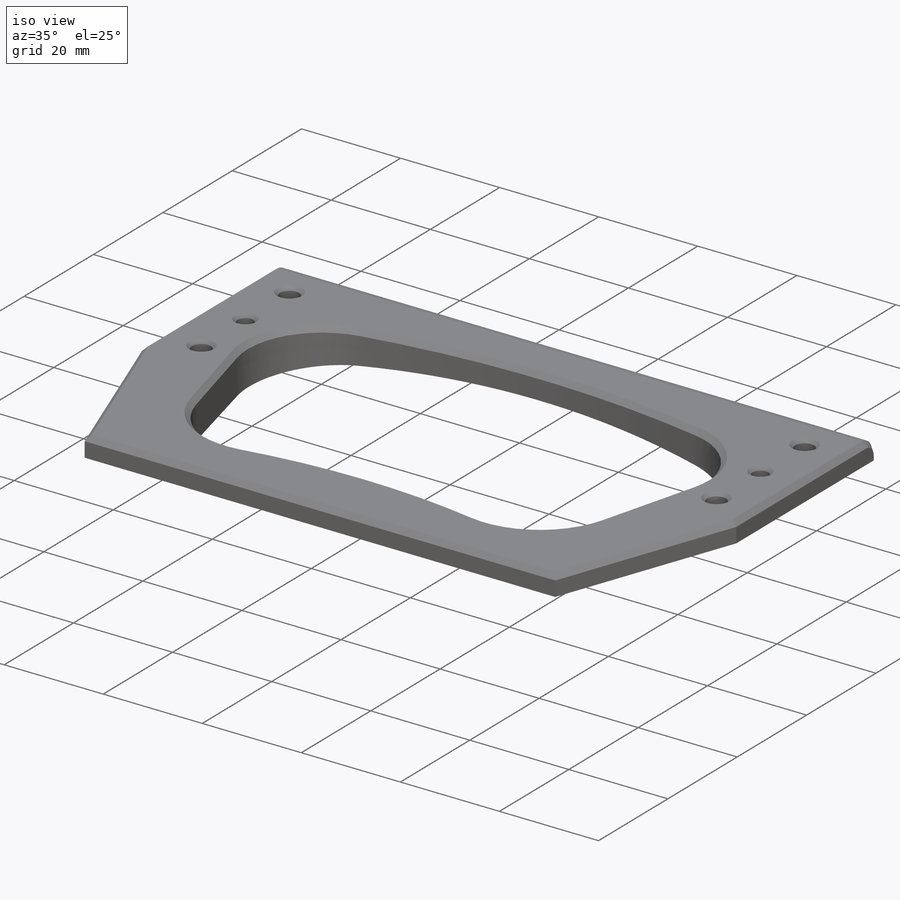
[diagram: iso view]
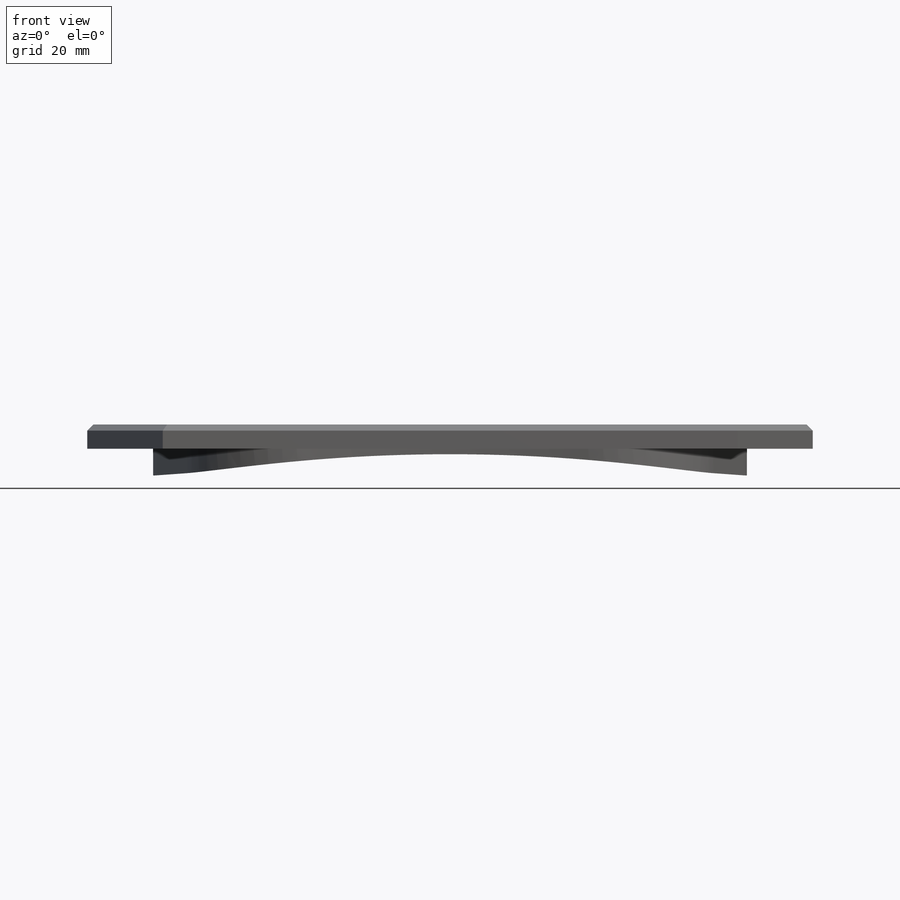
[diagram: front view]
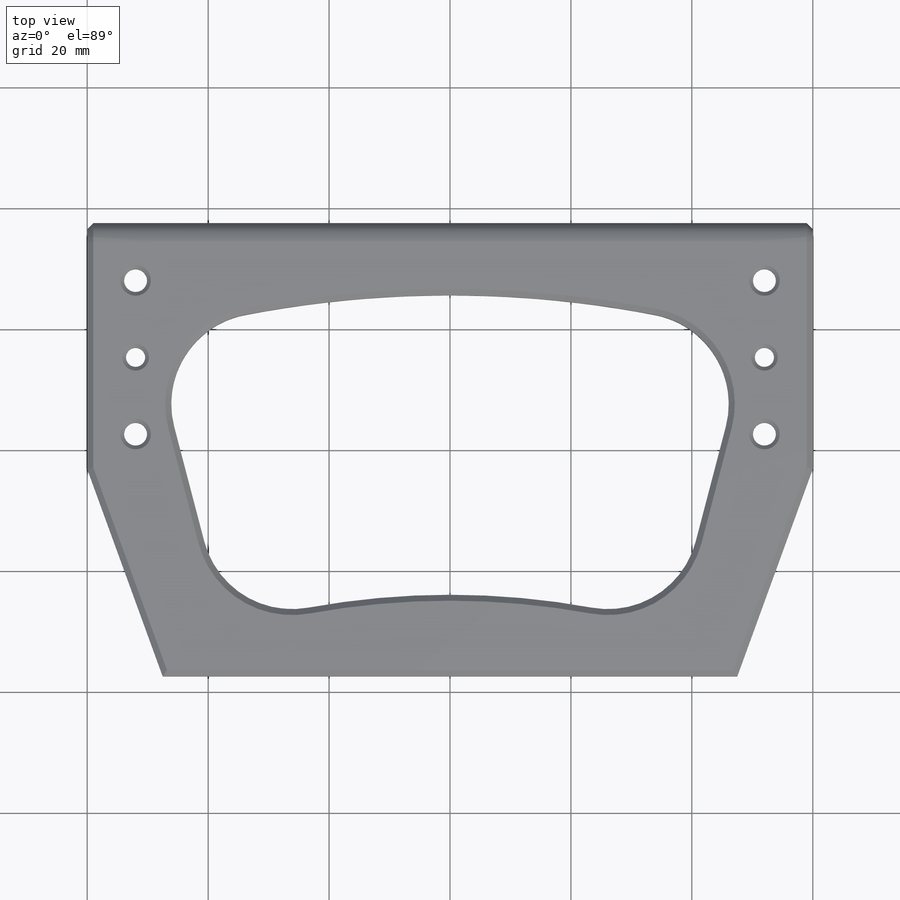
[diagram: top view]
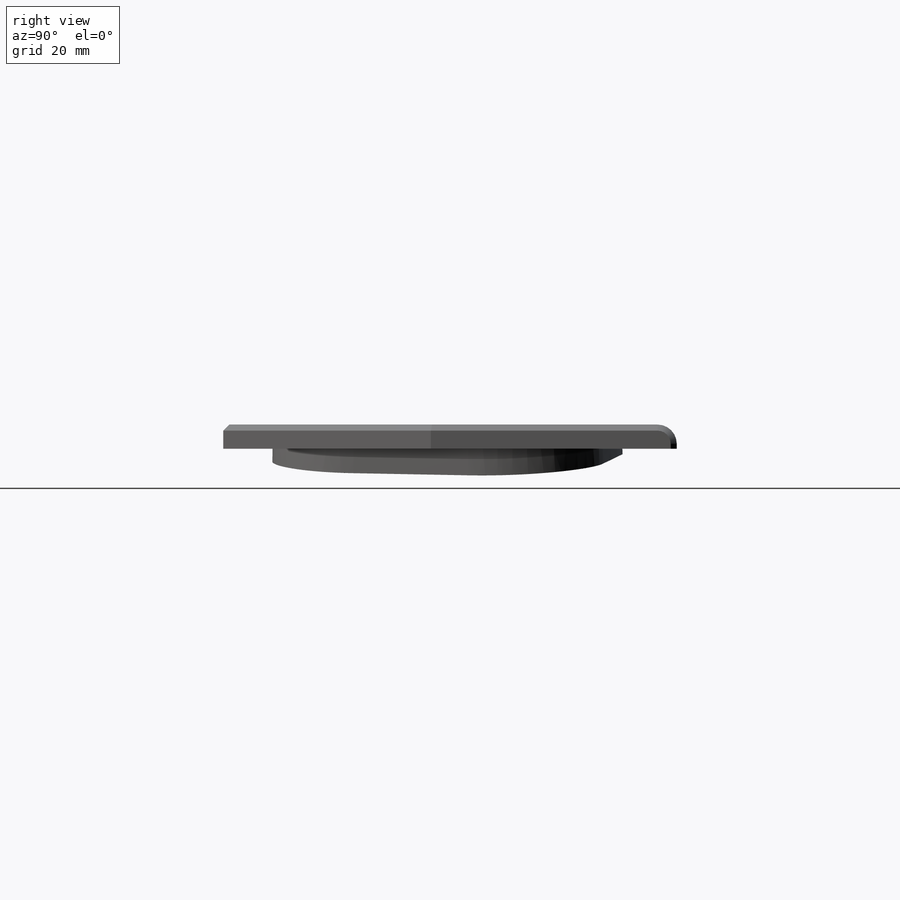
[diagram: right view]
SOLIDWORKS PART (.sldprt)
format: sldprt  version: not decoded by parser v0  size: 415,232 bytes
history: native  units: mm
features: sketch x6, thread x4, extrude x2, hole x2, fillet x2, chamfer x2, material x1 (+16 scaffold rows collapsed)
feature tree (35):
  scaffold x16  (default folders/planes/origin — collapsed)
  material  "Material <not specified>"
  sketch  "Sketch1"  dims[c1.D5=130.0mm c1.D1=120.0mm c1.D2=75.0mm c1.D3=~102.079964mm c2.D3=16.5deg c2.D4=~117.493861mm c3.D4=16.5deg c3.D6=116.5mm c3.D8=~179.54891mm c4.D8=16.0deg c4.D9=152.6mm c5.D9=16.0deg c5.D7=~49.54891mm]
  extrude  "Boss-Extrude1"  Depth=4mm
  hole  "#10-24 Tapped Hole1"  Diameter=3.7973mm Depth=4mm
  sketch  "Sketch3"  dims[D1=25.4mm D2=9.525mm D3=8.0mm]
  sketch  "Sketch2"  dims[hole-wizard template sketch: 54 standard entries collapsed; hole parameters kept: c17.Thru Tap Drill Dia.=3.7973mm c17.Thru Tap Drill Depth=4.0mm c17.Near C'Sink Dia.=5.08mm c17.D4=~3.666174mm c17.Near C'Sink Angle=90.0deg]
  thread  "Hole Thread1"  Diameter=4.826mm  [1 undecoded]
  thread  "Hole Thread2"  Diameter=4.826mm  [1 undecoded]
  thread  "Hole Thread3"  Diameter=4.826mm  [1 undecoded]
  thread  "Hole Thread4"  Diameter=4.826mm  [1 undecoded]
  fillet  "Fillet1"  Radius=15mm
  hole  "1/8 (0.125) Diameter Hole1"  Diameter=3.175mm Depth=4mm
  sketch  "Sketch5"
  sketch  "Sketch4"  dims[hole-wizard template sketch: 47 standard entries collapsed; hole parameters kept: c15.Thru Hole Depth=4.0mm c15.Near C'Sink Dia.=4.445mm c15.D4=~3.666174mm c15.Near C'Sink Angle=90.0deg c15.Far C'Sink Dia.=4.445mm c15.D6=~9.919017mm c15.Far C'Sink Angle=90.0deg]
  sketch  "Sketch9"  dims[D1=3.0mm]
  extrude  "Boss-Extrude2"  Depth=4.6mm
  fillet  "Fillet2"  Radius=3.175mm
  chamfer  "Chamfer2"  Distance=12.5mm Angle=70deg
  chamfer  "Chamfer1"  Distance=1mm Angle=45deg
decode coverage: 17 of 18 modeling features carry decoded parameters
note: ~ marks probable driven/reference dimensions
note: 4 parameter values undecoded
note: suppression state not decoded; provenance and decode notes live in map.json
